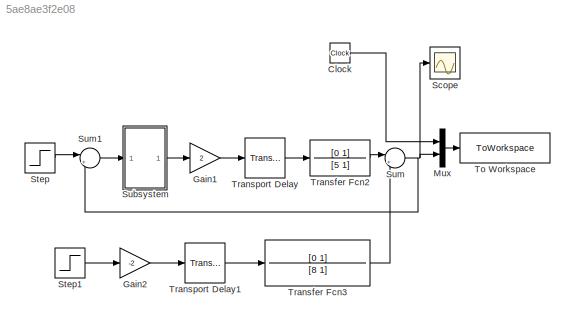
MODEL slx_5ae8ae3f2e08
KIND model
CONFIG AbsTol = auto
CONFIG EnableMultiTasking = off
CONFIG FixedStep = auto
CONFIG MaxStep = auto
CONFIG MinStep = auto
CONFIG RelTol = 1e-3
CONFIG SampleTimeConstraint = Unconstrained
CONFIG SolverName = VariableStepAuto
CONFIG StartTime = 0.0
CONFIG StopTime = 50
BLOCK [Clock] Clock
BLOCK [Gain] Gain1
  Gain = 2
BLOCK [Gain] Gain2
  Gain = -2
BLOCK [Mux] Mux
  DisplayOption = bar
  Inputs = 2
  Ports = [2, 1]
BLOCK [Scope] Scope
  Floating = off
  NumInputPorts = 1
  Ports = [1]
  ScopeSpecificationString = Simulink.scopes.TimeScopeBlockCfg('CurrentConfiguration', extmgr.ConfigurationSet(extmgr.Configuration('Core','General UI',true),extmgr.Configuration('Core','Source UI',true),extmgr.Configuration('Sources','WiredSimulink',true),extmgr.Configuration('Visuals','Time Domain',true,'SerializedDisplays',{struct('MinYLimReal','-0.36693','MaxYLimReal','0.04077','YLabelReal','','MinYLimMag','0.00000','MaxY...<+1352ch>
BLOCK [Step] Step
  After = 0
  SampleTime = 0
  Time = 0
BLOCK [Step] Step1
  SampleTime = 0
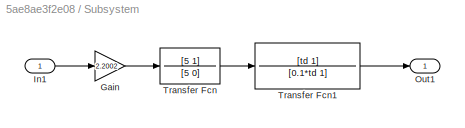
BLOCK [SubSystem] Subsystem
  Ports = [1, 1]
  RequestExecContextInheritance = off
BLOCK [Gain] Subsystem/Gain
  Gain = 2.2002
BLOCK [Inport] Subsystem/In1
BLOCK [Outport] Subsystem/Out1
BLOCK [TransferFcn] Subsystem/Transfer Fcn
  Denominator = [5 0]
  Numerator = [5 1]
BLOCK [TransferFcn] Subsystem/Transfer Fcn1
  Denominator = [0.1*td 1]
  Numerator = [td 1]
BLOCK [Sum] Sum
  Inputs = |++
  Ports = [2, 1]
BLOCK [Sum] Sum1
  Inputs = |+-
  Ports = [2, 1]
BLOCK [ToWorkspace] To Workspace
  FixptAsFi = on
  MaxDataPoints = inf
  Ports = [1]
  SampleTime = -1
  VariableName = y
BLOCK [TransferFcn] Transfer Fcn2
  Denominator = [5 1]
  Numerator = [0 1]
BLOCK [TransferFcn] Transfer Fcn3
  Denominator = [8 1]
  Numerator = [0 1]
BLOCK [TransportDelay] Transport Delay
  Ports = [1, 1]
BLOCK [TransportDelay] Transport Delay1
  DelayTime = 2
  Ports = [1, 1]
LINE Clock:1 -> Mux:1
LINE Gain1:1 -> Transport Delay:1
LINE Gain2:1 -> Transport Delay1:1
LINE Mux:1 -> To Workspace:1
LINE Step1:1 -> Gain2:1
LINE Step:1 -> Sum1:1
LINE Subsystem/Gain:1 -> Subsystem/Transfer Fcn:1
LINE Subsystem/In1:1 -> Subsystem/Gain:1
LINE Subsystem/Transfer Fcn1:1 -> Subsystem/Out1:1
LINE Subsystem/Transfer Fcn:1 -> Subsystem/Transfer Fcn1:1
LINE Subsystem:1 -> Gain1:1
LINE Sum1:1 -> Subsystem:1
NET Sum:1 -> Mux:2, Scope:1, Sum1:2
LINE Transfer Fcn2:1 -> Sum:1
LINE Transfer Fcn3:1 -> Sum:2
LINE Transport Delay1:1 -> Transfer Fcn3:1
LINE Transport Delay:1 -> Transfer Fcn2:1
note: NET lines group one-source signal fan-out (src -> all destinations, sorted); 1:1 wires keep LINE
